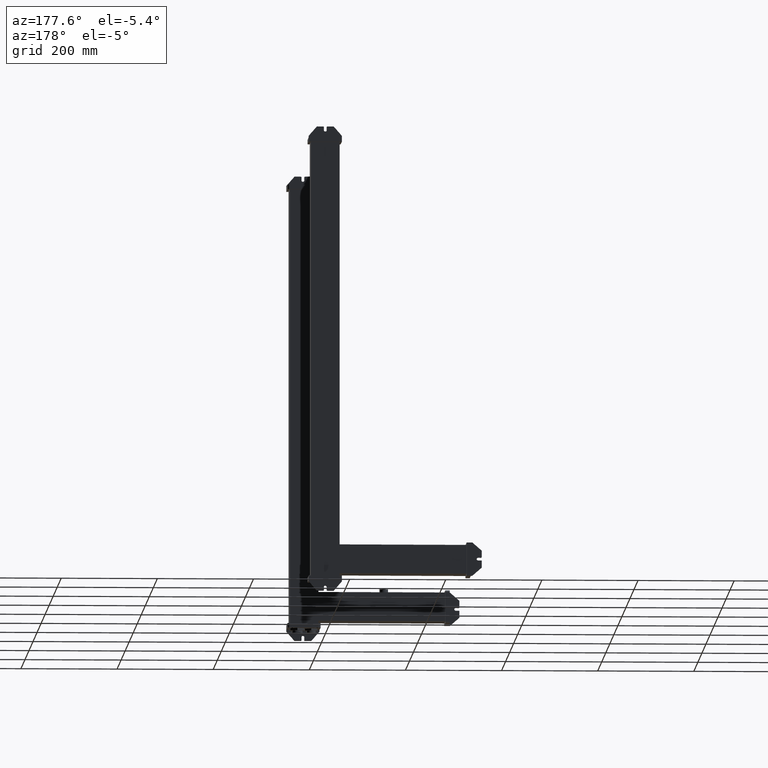
[diagram: clean part render]
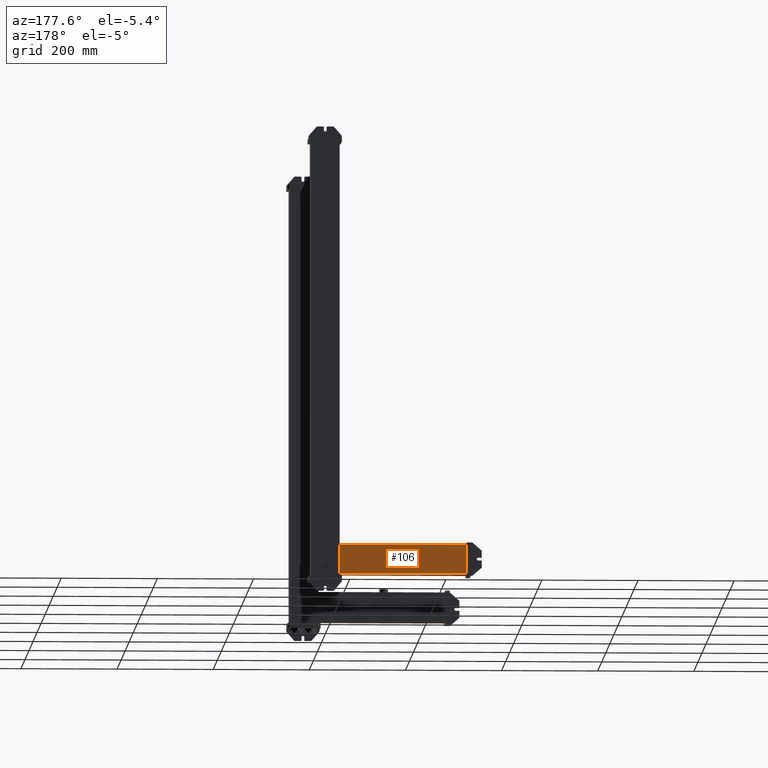
[diagram: same view with one face highlighted and labeled with its STEP entity id]
A machine part, auxiliary view. The second image highlights one B-rep face of the part: STEP entity #106.
In plain terms, the highlighted planar face has unit normal (0, 1, -0).
Its self-contained STEP definition (entity closure, byte-faithful):
#67=CARTESIAN_POINT('Axis2P3D Location',(0.,0.,0.)) ;
#72=CARTESIAN_POINT('Line Origine',(0.,0.,132.)) ;
#76=CARTESIAN_POINT('Vertex',(0.,0.,0.)) ;
#78=CARTESIAN_POINT('Vertex',(0.,0.,264.)) ;
#81=CARTESIAN_POINT('Line Origine',(30.,0.,0.)) ;
#85=CARTESIAN_POINT('Vertex',(60.,0.,0.)) ;
#88=CARTESIAN_POINT('Line Origine',(60.,0.,132.)) ;
#92=CARTESIAN_POINT('Vertex',(60.,0.,264.)) ;
#95=CARTESIAN_POINT('Line Origine',(30.,0.,264.)) ;
#68=DIRECTION('Axis2P3D Direction',(0.,-1.,0.)) ;
#69=DIRECTION('Axis2P3D XDirection',(1.,0.,0.)) ;
#73=DIRECTION('Vector Direction',(0.,0.,1.)) ;
#82=DIRECTION('Vector Direction',(1.,0.,0.)) ;
#89=DIRECTION('Vector Direction',(0.,0.,1.)) ;
#96=DIRECTION('Vector Direction',(1.,0.,0.)) ;
#70=AXIS2_PLACEMENT_3D('Plane Axis2P3D',#67,#68,#69) ;
#101=ORIENTED_EDGE('',*,*,#80,.F.) ;
#102=ORIENTED_EDGE('',*,*,#87,.T.) ;
#103=ORIENTED_EDGE('',*,*,#94,.T.) ;
#104=ORIENTED_EDGE('',*,*,#99,.F.) ;
#74=VECTOR('Line Direction',#73,1.) ;
#83=VECTOR('Line Direction',#82,1.) ;
#90=VECTOR('Line Direction',#89,1.) ;
#97=VECTOR('Line Direction',#96,1.) ;
#106=ADVANCED_FACE('PartBody',(#105),#71,.T.) ;
#80=EDGE_CURVE('',#77,#79,#75,.T.) ;
#87=EDGE_CURVE('',#77,#86,#84,.T.) ;
#94=EDGE_CURVE('',#86,#93,#91,.T.) ;
#99=EDGE_CURVE('',#79,#93,#98,.T.) ;
#100=EDGE_LOOP('',(#101,#102,#103,#104)) ;
#105=FACE_OUTER_BOUND('',#100,.T.) ;
#75=LINE('Line',#72,#74) ;
#84=LINE('Line',#81,#83) ;
#91=LINE('Line',#88,#90) ;
#98=LINE('Line',#95,#97) ;
#71=PLANE('Plane',#70) ;
#77=VERTEX_POINT('',#76) ;
#79=VERTEX_POINT('',#78) ;
#86=VERTEX_POINT('',#85) ;
#93=VERTEX_POINT('',#92) ;